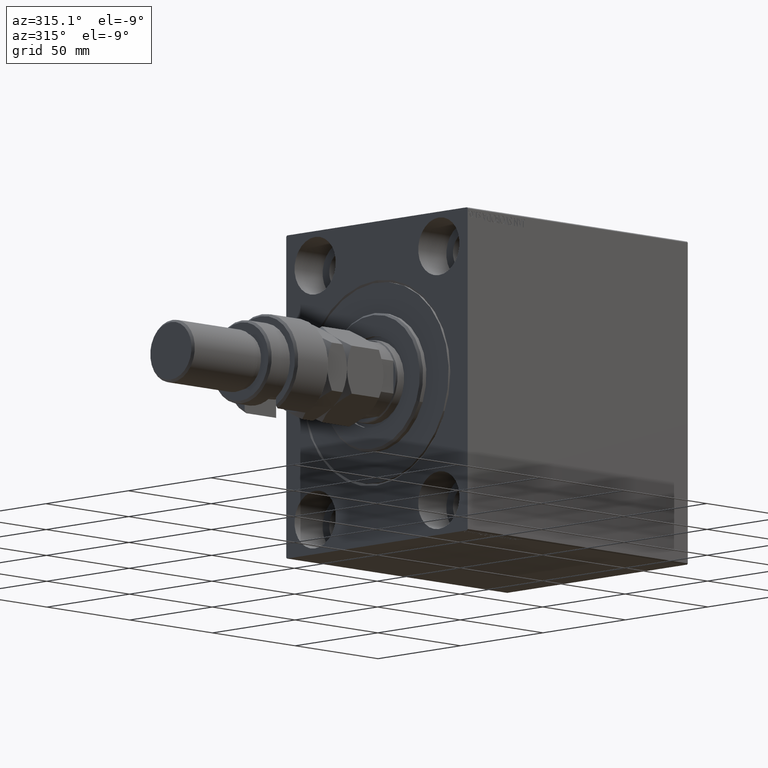
[diagram: clean part render]
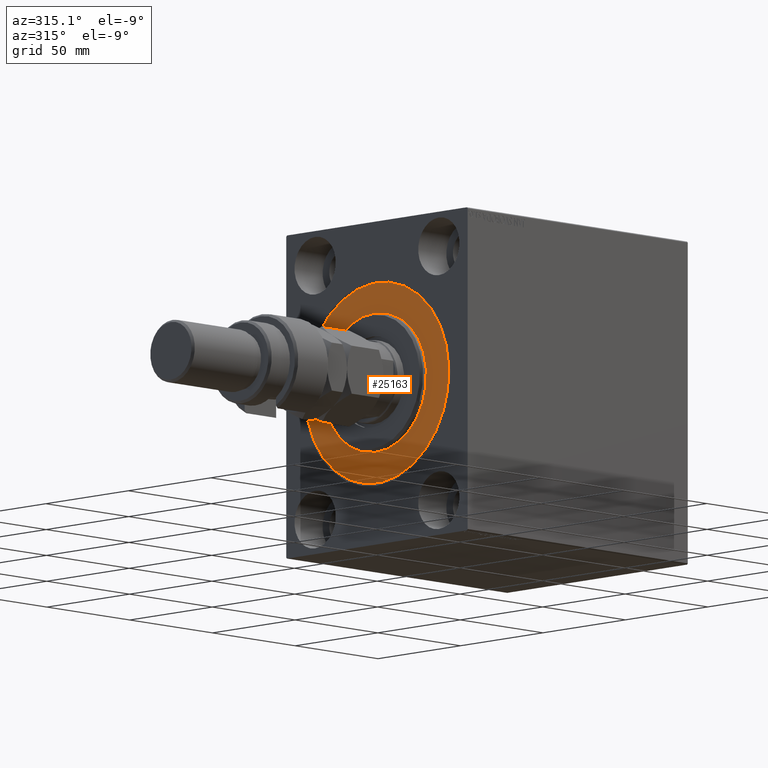
[diagram: same view with one face highlighted and labeled with its STEP entity id]
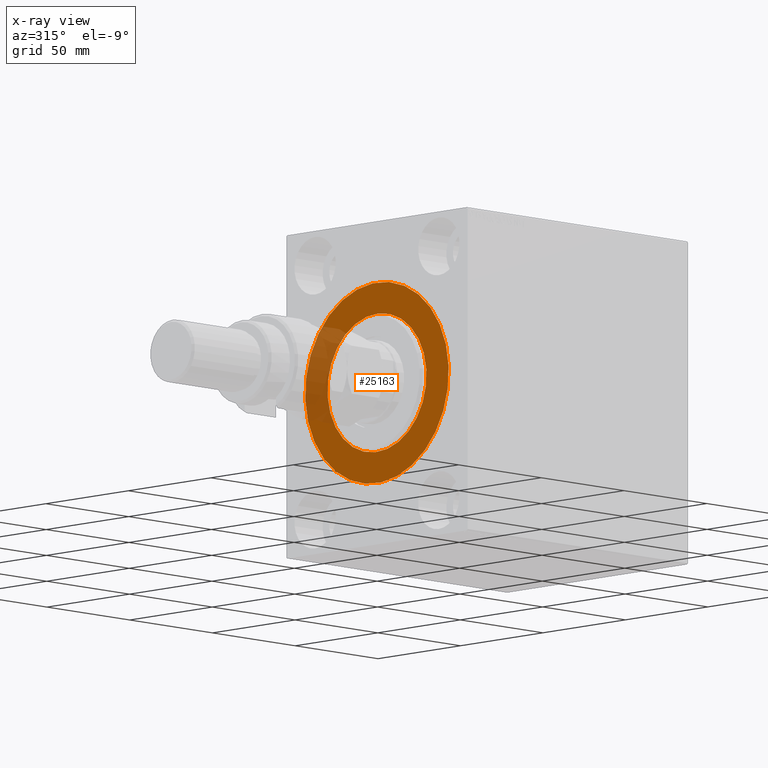
[diagram: x-ray of the same camera — body ghosted, the highlighted face saturated]
A machine part, auxiliary view. The second image highlights one B-rep face of the part: STEP entity #25163.
The next image is the same camera in x-ray: the body ghosted, the highlighted face saturated — about 19% of this face is hidden behind the body in this view.
In plain terms, the highlighted planar face has unit normal (1, 0, -0).
Its self-contained STEP definition (entity closure, byte-faithful):
#169 = DIRECTION ( 'NONE',  ( -1.000000000000000000, 0.000000000000000000, 0.000000000000000000 ) ) ;
#536 = DIRECTION ( 'NONE',  ( -1.000000000000000000, 0.000000000000000000, 0.000000000000000000 ) ) ;
#1417 = CIRCLE ( 'NONE', #13469, 30.00000000000000000 ) ;
#3929 = FACE_BOUND ( 'NONE', #36202, .T. ) ;
#8620 = EDGE_CURVE ( 'NONE', #14404, #23164, #1417, .T. ) ;
#10775 = CARTESIAN_POINT ( 'NONE',  ( 0.000000000000000000, 0.000000000000000000, 0.000000000000000000 ) ) ;
#11236 = DIRECTION ( 'NONE',  ( 0.000000000000000000, 0.000000000000000000, 1.000000000000000000 ) ) ;
#12575 = DIRECTION ( 'NONE',  ( 0.000000000000000000, 0.000000000000000000, -1.000000000000000000 ) ) ;
#13469 = AXIS2_PLACEMENT_3D ( 'NONE', #46139, #21331, #46603 ) ;
#14404 = VERTEX_POINT ( 'NONE', #15224 ) ;
#14919 = DIRECTION ( 'NONE',  ( 0.000000000000000000, 0.000000000000000000, 1.000000000000000000 ) ) ;
#15019 = PLANE ( 'NONE',  #39218 ) ;
#15224 = CARTESIAN_POINT ( 'NONE',  ( 0.000000000000000000, 0.000000000000000000, 30.00000000000000000 ) ) ;
#16469 = CARTESIAN_POINT ( 'NONE',  ( 0.000000000000000000, 0.000000000000000000, -43.50000000000000000 ) ) ;
#17947 = AXIS2_PLACEMENT_3D ( 'NONE', #46361, #536, #14919 ) ;
#20207 = CIRCLE ( 'NONE', #17947, 43.50000000000000000 ) ;
#20489 = EDGE_CURVE ( 'NONE', #23164, #14404, #40735, .T. ) ;
#21331 = DIRECTION ( 'NONE',  ( 1.000000000000000000, -0.000000000000000000, 0.000000000000000000 ) ) ;
#21869 = CARTESIAN_POINT ( 'NONE',  ( 0.000000000000000000, 5.327213576290986044E-15, 43.50000000000000000 ) ) ;
#23164 = VERTEX_POINT ( 'NONE', #33112 ) ;
#23348 = AXIS2_PLACEMENT_3D ( 'NONE', #45630, #24121, #12575 ) ;
#23678 = DIRECTION ( 'NONE',  ( 0.000000000000000000, 0.000000000000000000, 1.000000000000000000 ) ) ;
#24121 = DIRECTION ( 'NONE',  ( 1.000000000000000000, -0.000000000000000000, 0.000000000000000000 ) ) ;
#24549 = ORIENTED_EDGE ( 'NONE', *, *, #20489, .F. ) ;
#25163 = ADVANCED_FACE ( 'NONE', ( #3929, #42901 ), #15019, .F. ) ;
#25352 = VERTEX_POINT ( 'NONE', #21869 ) ;
#26786 = ORIENTED_EDGE ( 'NONE', *, *, #8620, .F. ) ;
#27222 = DIRECTION ( 'NONE',  ( -1.000000000000000000, 0.000000000000000000, 0.000000000000000000 ) ) ;
#28224 = AXIS2_PLACEMENT_3D ( 'NONE', #44955, #27222, #23678 ) ;
#32152 = ORIENTED_EDGE ( 'NONE', *, *, #46184, .F. ) ;
#33112 = CARTESIAN_POINT ( 'NONE',  ( 0.000000000000000000, 3.673940397442059178E-15, -30.00000000000000000 ) ) ;
#34430 = VERTEX_POINT ( 'NONE', #16469 ) ;
#36202 = EDGE_LOOP ( 'NONE', ( #26786, #24549 ) ) ;
#37069 = EDGE_CURVE ( 'NONE', #34430, #25352, #40307, .T. ) ;
#39218 = AXIS2_PLACEMENT_3D ( 'NONE', #10775, #169, #11236 ) ;
#40307 = CIRCLE ( 'NONE', #28224, 43.50000000000000000 ) ;
#40735 = CIRCLE ( 'NONE', #23348, 30.00000000000000000 ) ;
#41938 = ORIENTED_EDGE ( 'NONE', *, *, #37069, .F. ) ;
#42901 = FACE_OUTER_BOUND ( 'NONE', #42989, .T. ) ;
#42989 = EDGE_LOOP ( 'NONE', ( #41938, #32152 ) ) ;
#44955 = CARTESIAN_POINT ( 'NONE',  ( 0.000000000000000000, 0.000000000000000000, 0.000000000000000000 ) ) ;
#45630 = CARTESIAN_POINT ( 'NONE',  ( 0.000000000000000000, 0.000000000000000000, 0.000000000000000000 ) ) ;
#46139 = CARTESIAN_POINT ( 'NONE',  ( 0.000000000000000000, 0.000000000000000000, 0.000000000000000000 ) ) ;
#46184 = EDGE_CURVE ( 'NONE', #25352, #34430, #20207, .T. ) ;
#46361 = CARTESIAN_POINT ( 'NONE',  ( 0.000000000000000000, 0.000000000000000000, 0.000000000000000000 ) ) ;
#46603 = DIRECTION ( 'NONE',  ( 0.000000000000000000, 0.000000000000000000, -1.000000000000000000 ) ) ;